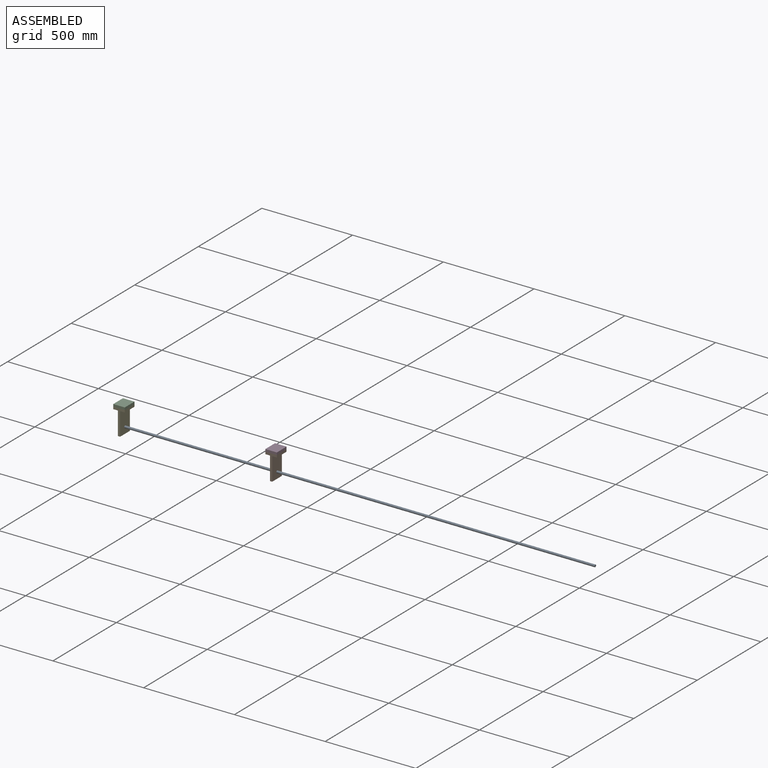
[diagram: assembled view]
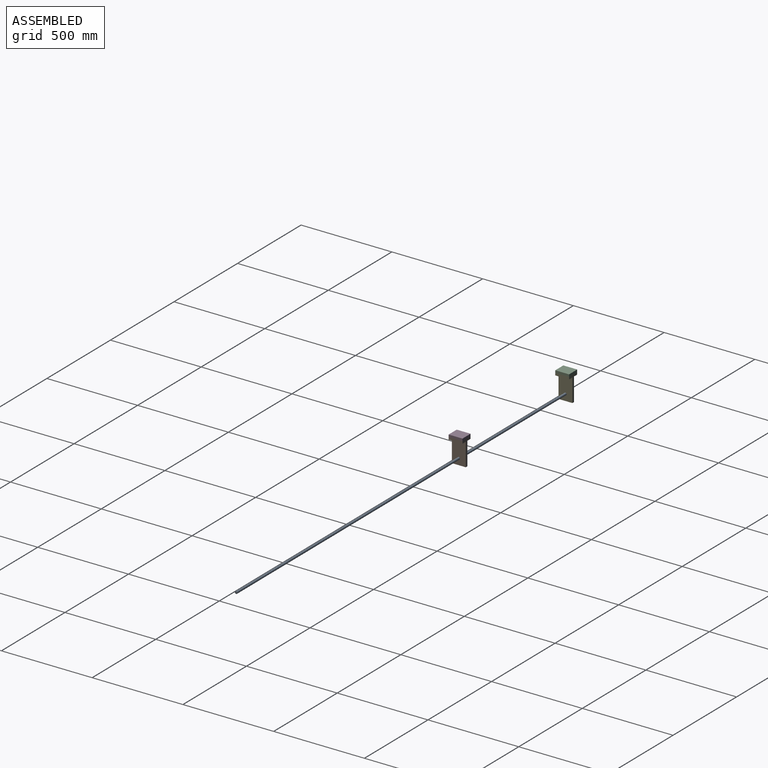
[diagram: assembled view, second angle]
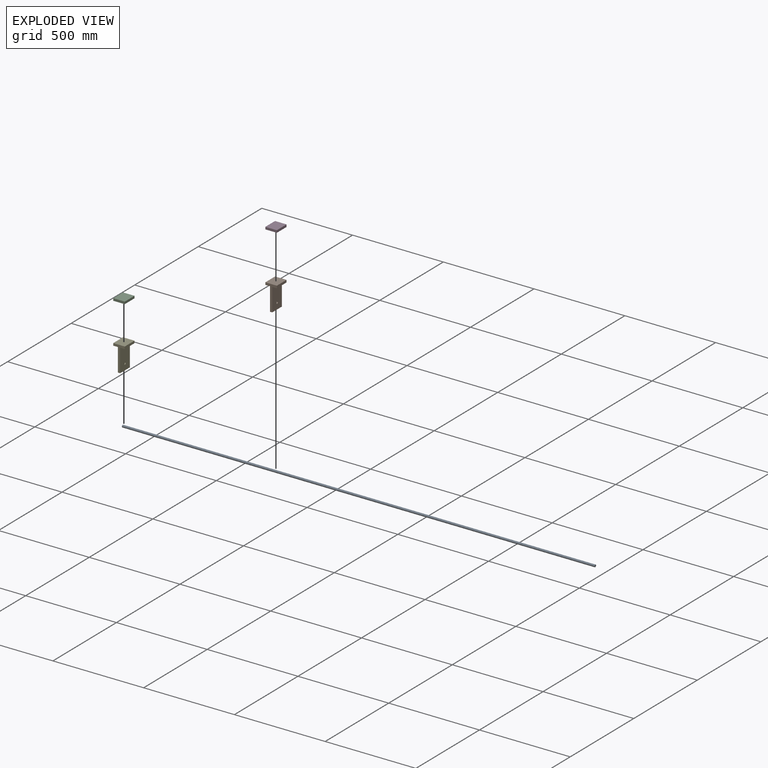
[diagram: exploded view]
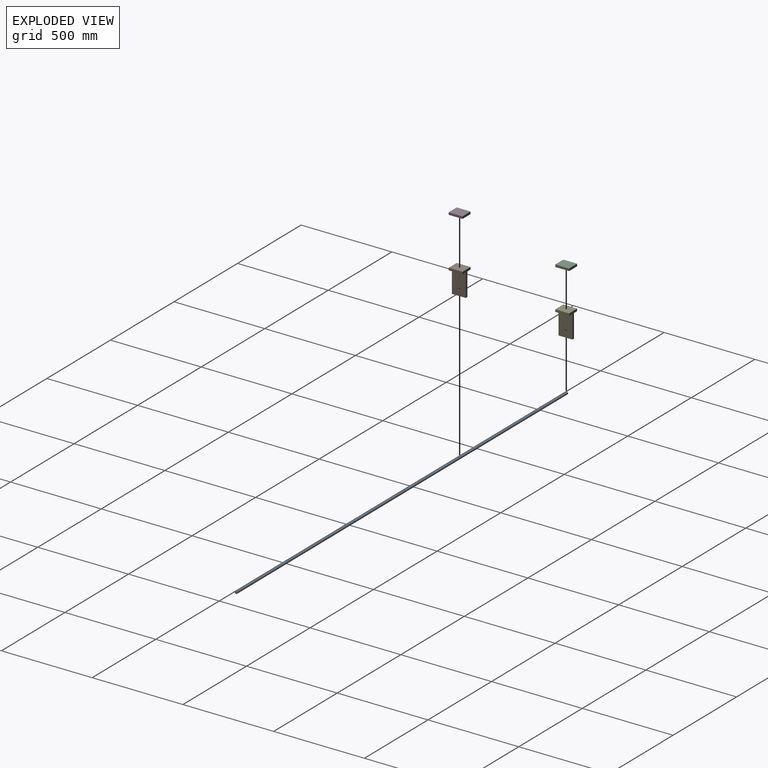
[diagram: exploded view, second angle]
ASSEMBLY  parts=5 mates=4
PART A: 3 faces, bbox 2603.5x12.7x12.7 mm
  f0: cylinder r=6.35mm len=2603.5mm, axis (-1,0,0), area 103875mm2, adj f1,f2
  f1: plane 12.7x12.7mm, normal (1,0,0), area 126.7mm2, adj f0
  f2: plane 12.7x12.7mm, normal (-1,0,0), area 126.7mm2, adj f0
PART B: 11 faces, bbox 63.5x76.2x139.7 mm
  f0: plane 76.2x63.5mm, normal (0,0,1), area 4838.7mm2, adj f1,f7,f8,f9
  f1: plane 76.2x12.7mm, normal (-1,0,0), area 967.7mm2, adj f0,f2,f8,f9
  f2: plane 76.2x25.4mm, normal (0,0,-1), area 1935.5mm2, adj f1,f3,f8,f9
  f3: plane 127x76.2mm, normal (-1,0,0), area 9550.7mm2, adj f2,f4,f8,f9,f10
  f4: plane 76.2x12.7mm, normal (0,0,-1), area 967.7mm2, adj f3,f5,f8,f9
  f5: plane 127x76.2mm, normal (1,0,0), area 9550.7mm2, adj f4,f6,f8,f9,f10
  f6: plane 76.2x25.4mm, normal (0,0,-1), area 1935.5mm2, adj f5,f7,f8,f9
  f7: plane 76.2x12.7mm, normal (1,0,0), area 967.7mm2, adj f0,f6,f8,f9
  f8: plane 139.7x63.5mm, normal (0,1,0), area 2419.3mm2, adj f0,f1,f2,f3,f4,f5,f6,f7
  f9: plane 139.7x63.5mm, normal (0,-1,0), area 2419.3mm2, adj f0,f1,f2,f3,f4,f5,f6,f7
  f10: cylinder r=6.35mm len=12.7mm, axis (1,0,0), area 506.7mm2, adj f3,f5
PART C: 6 faces, bbox 63.5x76.2x12.7 mm
  f0: plane 76.2x12.7mm, normal (-1,0,0), area 967.7mm2, adj f1,f3,f4,f5
  f1: plane 63.5x12.7mm, normal (0,-1,0), area 806.4mm2, adj f0,f2,f4,f5
  f2: plane 76.2x12.7mm, normal (1,0,0), area 967.7mm2, adj f1,f3,f4,f5
  f3: plane 63.5x12.7mm, normal (0,1,0), area 806.4mm2, adj f0,f2,f4,f5
  f4: plane 76.2x63.5mm, normal (0,0,1), area 4838.7mm2, adj f0,f1,f2,f3
  f5: plane 76.2x63.5mm, normal (0,0,-1), area 4838.7mm2, adj f0,f1,f2,f3
PART D: same geometry as C
PART E: same geometry as B
PLACE A t=(-88.32,103.78,-47.03)mm
PLACE B t=(796.32,103.27,30.85)mm
PLACE C t=(-41.88,103.78,30.59)mm
PLACE D t=(796.32,103.27,30.85)mm
PLACE E t=(-41.88,103.78,30.59)mm
MATE cylindrical A.f0 <-> E.f10  axis (-1,0,0) through (1213.43,103.78,-47.03)mm
MATE parallel A.f0 <-> E.f3  axis (-1,0,0) through (-88.32,103.78,-47.03)mm
MATE fastened D.f5 <-> B.f0  axis (0,0,-1) through (756.23,103.27,58)mm
MATE fastened C.f5 <-> E.f0  axis (0,0,-1) through (-81.97,103.78,57.74)mm
